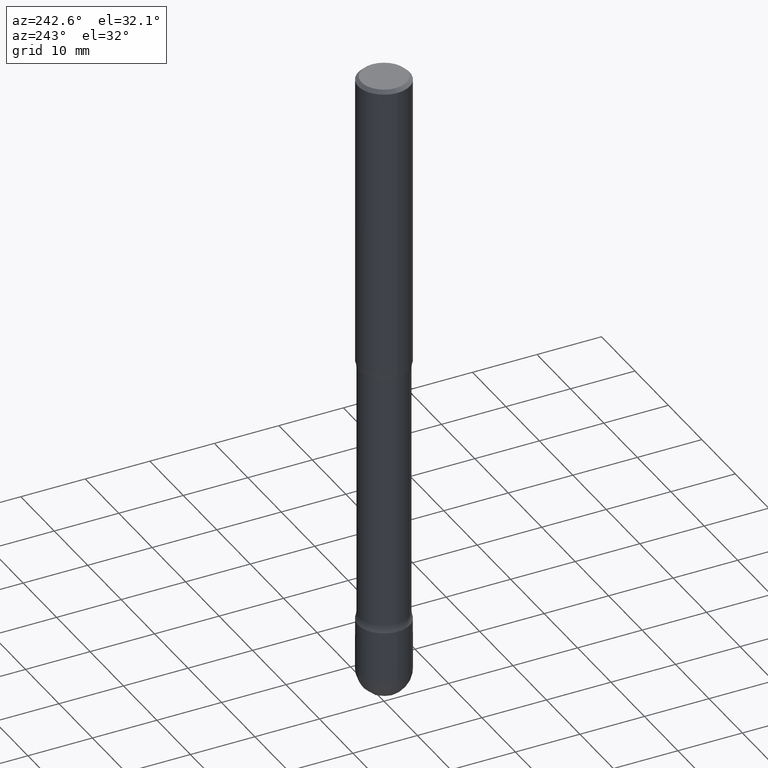
[diagram: clean part render]
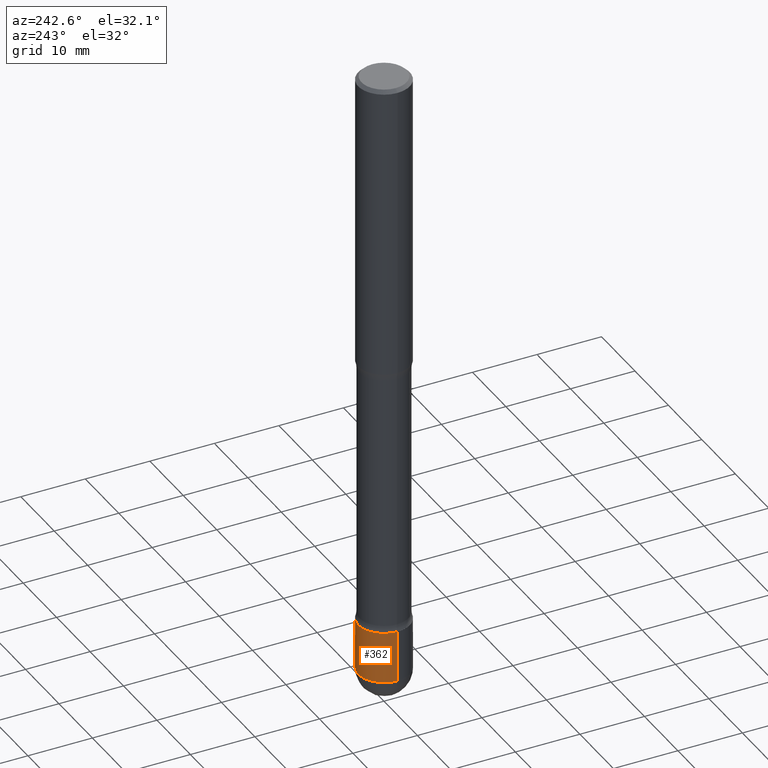
[diagram: same view with one face highlighted and labeled with its STEP entity id]
A machine part, auxiliary view. The second image highlights one B-rep face of the part: STEP entity #362.
In plain terms, the highlighted cylindrical surface (edge-blend (fillet) strip) has radius 4.0005 mm, axis along (-0, 0, 1).
Its self-contained STEP definition (entity closure, byte-faithful):
#4 = CIRCLE ( 'NONE', #323, 0.1574999999999993072 ) ;
#6 = VERTEX_POINT ( 'NONE', #119 ) ;
#19 = CIRCLE ( 'NONE', #62, 0.1574999999999993072 ) ;
#24 = EDGE_CURVE ( 'NONE', #352, #527, #78, .T. ) ;
#33 = EDGE_CURVE ( 'NONE', #218, #6, #298, .T. ) ;
#47 = ORIENTED_EDGE ( 'NONE', *, *, #33, .T. ) ;
#59 = CARTESIAN_POINT ( 'NONE',  ( 9.242649352976724072E-29, -1.319605372015766849E-14, -3.779500000000000082 ) ) ;
#62 = AXIS2_PLACEMENT_3D ( 'NONE', #59, #181, #441 ) ;
#63 = FACE_OUTER_BOUND ( 'NONE', #95, .T. ) ;
#78 = LINE ( 'NONE', #379, #521 ) ;
#86 = DIRECTION ( 'NONE',  ( -2.445468806185136597E-29, 3.491481338843145583E-15, 1.000000000000000000 ) ) ;
#95 = EDGE_LOOP ( 'NONE', ( #514, #47, #128, #210, #445 ) ) ;
#96 = CARTESIAN_POINT ( 'NONE',  ( 0.1574999999999993072, -1.374613660509239965E-14, -3.779500000000000082 ) ) ;
#100 = CARTESIAN_POINT ( 'NONE',  ( 0.1574999999999993350, -1.319640286829154569E-14, -3.464599999999999902 ) ) ;
#119 = CARTESIAN_POINT ( 'NONE',  ( -0.1574999999999993350, -1.152721517453466324E-14, -3.464599999999999902 ) ) ;
#127 = DIRECTION ( 'NONE',  ( -2.445468806185136877E-29, 3.491481338843145188E-15, 1.000000000000000000 ) ) ;
#128 = ORIENTED_EDGE ( 'NONE', *, *, #375, .F. ) ;
#175 = CARTESIAN_POINT ( 'NONE',  ( -0.1574999999999993350, 1.119104808822153067E-15, -7.747322767151444755E-30 ) ) ;
#181 = DIRECTION ( 'NONE',  ( -2.445468806185136597E-29, 3.491481338843145583E-15, 1.000000000000000000 ) ) ;
#188 = AXIS2_PLACEMENT_3D ( 'NONE', #363, #224, #543 ) ;
#190 = CARTESIAN_POINT ( 'NONE',  ( 1.119104808822246547E-15, 0.1574999999999863454, -3.779500000000000526 ) ) ;
#195 = CARTESIAN_POINT ( 'NONE',  ( 9.242649352976724072E-29, -1.319605372015766849E-14, -3.779500000000000082 ) ) ;
#199 = EDGE_CURVE ( 'NONE', #352, #307, #4, .T. ) ;
#208 = DIRECTION ( 'NONE',  ( -2.445468806185136877E-29, 3.491481338843145188E-15, 1.000000000000000000 ) ) ;
#210 = ORIENTED_EDGE ( 'NONE', *, *, #24, .F. ) ;
#218 = VERTEX_POINT ( 'NONE', #280 ) ;
#222 = DIRECTION ( 'NONE',  ( -2.445468806185136597E-29, 3.491481338843145583E-15, 1.000000000000000000 ) ) ;
#224 = DIRECTION ( 'NONE',  ( -2.445468806185136597E-29, 3.491481338843145583E-15, 1.000000000000000000 ) ) ;
#280 = CARTESIAN_POINT ( 'NONE',  ( -0.1574999999999993072, -1.152721517453466482E-14, -3.779500000000000082 ) ) ;
#283 = DIRECTION ( 'NONE',  ( 1.000000000000000000, -6.982962677686267499E-15, 0.000000000000000000 ) ) ;
#298 = LINE ( 'NONE', #175, #369 ) ;
#307 = VERTEX_POINT ( 'NONE', #190 ) ;
#312 = CYLINDRICAL_SURFACE ( 'NONE', #558, 0.1574999999999993350 ) ;
#320 = DIRECTION ( 'NONE',  ( 1.000000000000000000, -6.982962677686266711E-15, 4.876176775795936353E-29 ) ) ;
#323 = AXIS2_PLACEMENT_3D ( 'NONE', #195, #222, #283 ) ;
#352 = VERTEX_POINT ( 'NONE', #96 ) ;
#362 = ADVANCED_FACE ( 'NONE', ( #63 ), #312, .T. ) ;
#363 = CARTESIAN_POINT ( 'NONE',  ( 8.472571225909024784E-29, -1.209658624655596216E-14, -3.464599999999999902 ) ) ;
#369 = VECTOR ( 'NONE', #127, 39.37007874015748143 ) ;
#375 = EDGE_CURVE ( 'NONE', #527, #6, #460, .T. ) ;
#379 = CARTESIAN_POINT ( 'NONE',  ( 0.1574999999999993350, -1.099816621735582353E-15, 7.679978421878567204E-30 ) ) ;
#431 = EDGE_CURVE ( 'NONE', #307, #218, #19, .T. ) ;
#441 = DIRECTION ( 'NONE',  ( 1.000000000000000000, -6.982962677686267499E-15, 0.000000000000000000 ) ) ;
#445 = ORIENTED_EDGE ( 'NONE', *, *, #199, .T. ) ;
#460 = CIRCLE ( 'NONE', #188, 0.1574999999999993350 ) ;
#476 = CARTESIAN_POINT ( 'NONE',  ( 0.000000000000000000, 0.000000000000000000, 0.000000000000000000 ) ) ;
#514 = ORIENTED_EDGE ( 'NONE', *, *, #431, .T. ) ;
#521 = VECTOR ( 'NONE', #208, 39.37007874015748143 ) ;
#527 = VERTEX_POINT ( 'NONE', #100 ) ;
#543 = DIRECTION ( 'NONE',  ( 1.000000000000000000, -6.982962677686266711E-15, 0.000000000000000000 ) ) ;
#558 = AXIS2_PLACEMENT_3D ( 'NONE', #476, #86, #320 ) ;